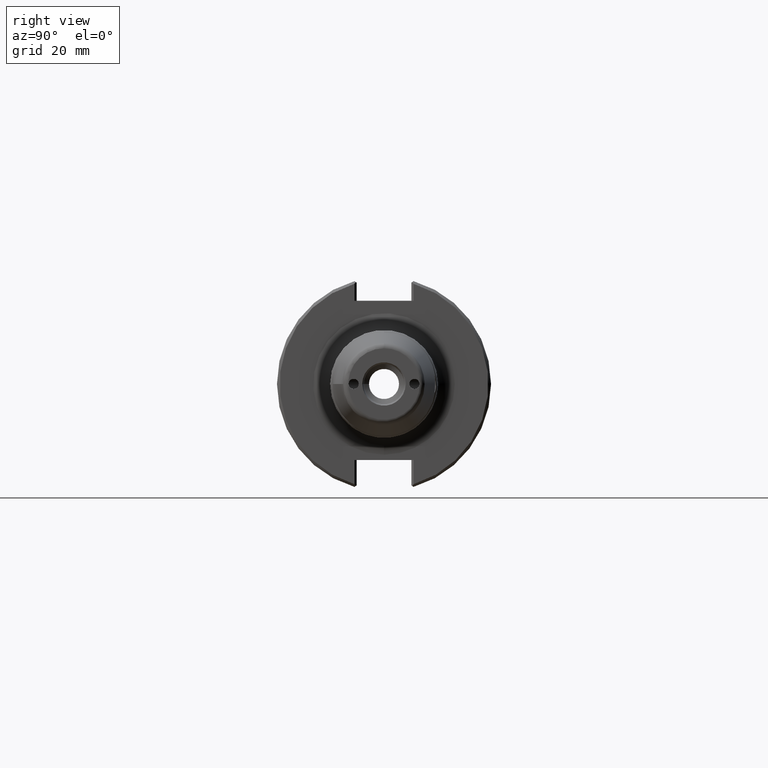
[diagram: clean part render]
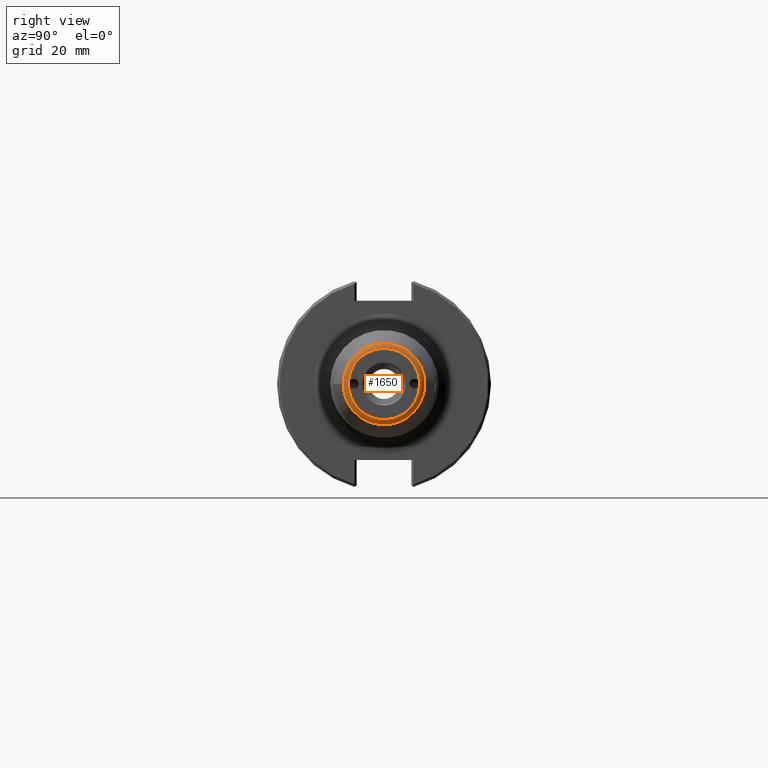
[diagram: same view with one face highlighted and labeled with its STEP entity id]
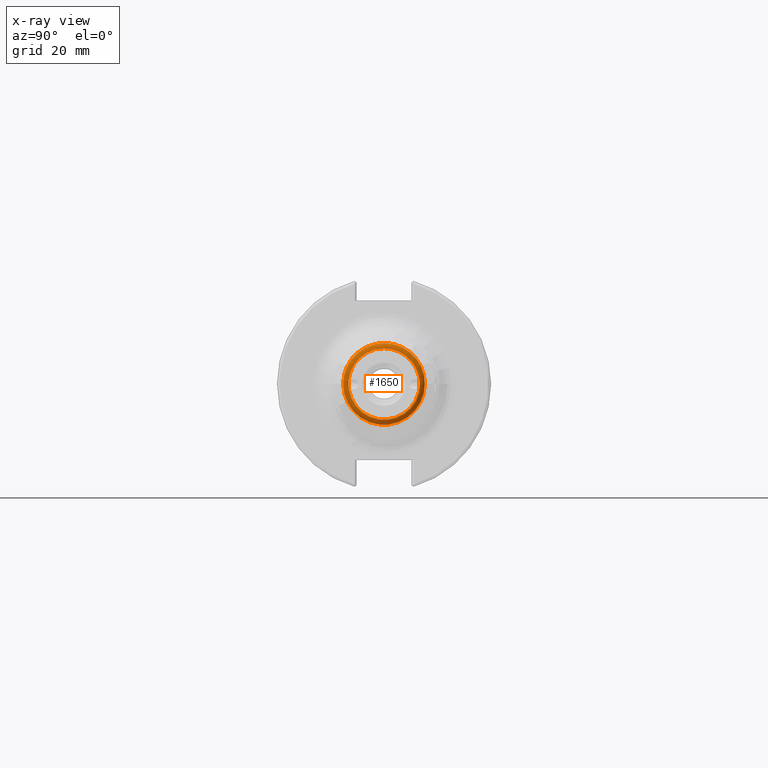
[diagram: x-ray of the same camera — body ghosted, the highlighted face saturated]
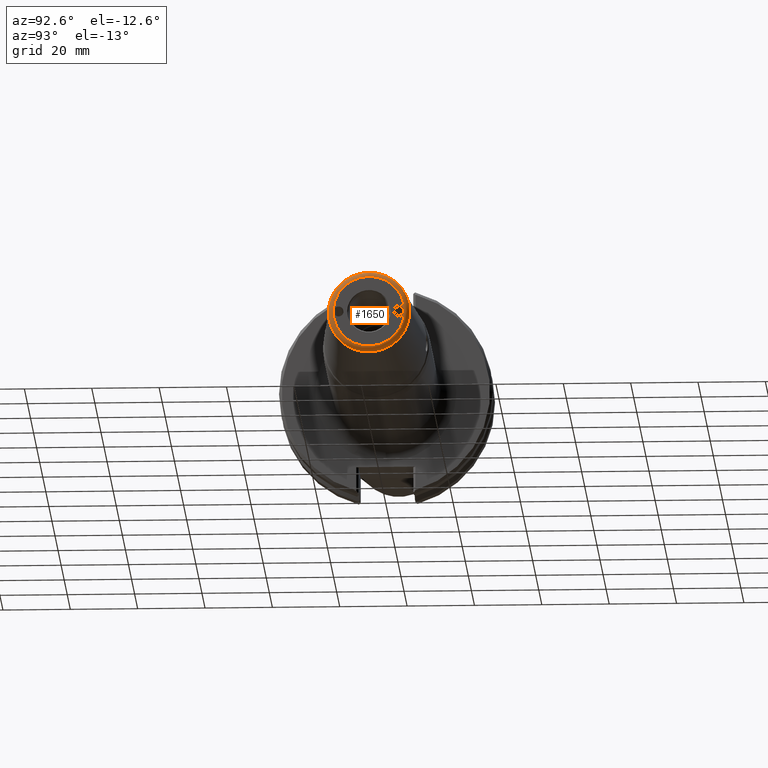
[diagram: same view with one face highlighted and labeled with its STEP entity id]
A machine part, right view. The second image highlights one B-rep face of the part: STEP entity #1650.
The next image is the same camera in x-ray: the body ghosted, the highlighted face saturated — about 0% of this face is hidden behind the body in this view.
A second angle (auxiliary view) of the same face is appended — the face is thin or edge-on in the first view.
In plain terms, the highlighted toroidal blend (fillet) surface has major radius 10.5912 mm and minor (blend) radius 1.524 mm.
Its self-contained STEP definition (entity closure, byte-faithful):
#371=FACE_OUTER_BOUND('',#456,.T.);
#456=EDGE_LOOP('',(#1167,#1168,#1169,#1170,#1171,#1172,#1173));
#563=CIRCLE('',#1785,10.5912288907129);
#564=CIRCLE('',#1786,1.524);
#565=CIRCLE('',#1787,12.1105309073222);
#566=CIRCLE('',#1788,12.1105309073222);
#567=CIRCLE('',#1789,12.1105309073222);
#568=CIRCLE('',#1790,10.5912288907129);
#684=VERTEX_POINT('',#2732);
#685=VERTEX_POINT('',#2733);
#686=VERTEX_POINT('',#2735);
#687=VERTEX_POINT('',#2737);
#688=VERTEX_POINT('',#2739);
#873=EDGE_CURVE('',#684,#685,#563,.T.);
#874=EDGE_CURVE('',#685,#686,#564,.T.);
#875=EDGE_CURVE('',#686,#687,#565,.T.);
#876=EDGE_CURVE('',#687,#688,#566,.T.);
#877=EDGE_CURVE('',#688,#686,#567,.T.);
#878=EDGE_CURVE('',#685,#684,#568,.T.);
#1167=ORIENTED_EDGE('',*,*,#873,.T.);
#1168=ORIENTED_EDGE('',*,*,#874,.T.);
#1169=ORIENTED_EDGE('',*,*,#875,.T.);
#1170=ORIENTED_EDGE('',*,*,#876,.T.);
#1171=ORIENTED_EDGE('',*,*,#877,.T.);
#1172=ORIENTED_EDGE('',*,*,#874,.F.);
#1173=ORIENTED_EDGE('',*,*,#878,.T.);
#1565=TOROIDAL_SURFACE('',#1784,10.5912288907129,1.524);
#1650=ADVANCED_FACE('',(#371),#1565,.T.);
#1784=AXIS2_PLACEMENT_3D('',#2731,#2037,#2038);
#1785=AXIS2_PLACEMENT_3D('',#2734,#2039,#2040);
#1786=AXIS2_PLACEMENT_3D('',#2736,#2041,#2042);
#1787=AXIS2_PLACEMENT_3D('',#2738,#2043,#2044);
#1788=AXIS2_PLACEMENT_3D('',#2740,#2045,#2046);
#1789=AXIS2_PLACEMENT_3D('',#2741,#2047,#2048);
#1790=AXIS2_PLACEMENT_3D('',#2742,#2049,#2050);
#2037=DIRECTION('center_axis',(1.,0.,0.));
#2038=DIRECTION('ref_axis',(0.,0.,-1.));
#2039=DIRECTION('center_axis',(-1.,0.,0.));
#2040=DIRECTION('ref_axis',(0.,-1.,1.22464679914735E-16));
#2041=DIRECTION('center_axis',(0.,-1.,-1.22464679914735E-16));
#2042=DIRECTION('ref_axis',(0.,-1.22464679914735E-16,1.));
#2043=DIRECTION('center_axis',(1.,0.,0.));
#2044=DIRECTION('ref_axis',(0.,-1.,0.));
#2045=DIRECTION('center_axis',(1.,0.,0.));
#2046=DIRECTION('ref_axis',(0.,-1.,0.));
#2047=DIRECTION('center_axis',(1.,0.,0.));
#2048=DIRECTION('ref_axis',(0.,-1.,0.));
#2049=DIRECTION('center_axis',(-1.,0.,0.));
#2050=DIRECTION('ref_axis',(0.,-1.,1.22464679914735E-16));
#2731=CARTESIAN_POINT('Origin',(128.476,0.,0.));
#2732=CARTESIAN_POINT('',(130.,10.5912288907129,-2.5941029120097E-15));
#2733=CARTESIAN_POINT('',(130.,-1.29705145600485E-15,10.5912288907129));
#2734=CARTESIAN_POINT('Origin',(130.,0.,0.));
#2735=CARTESIAN_POINT('',(128.595571661889,-1.48311229116272E-15,12.1105309073222));
#2736=CARTESIAN_POINT('Origin',(128.476,-1.29705145600485E-15,10.5912288907129));
#2737=CARTESIAN_POINT('',(128.595571661889,-12.1105309073222,-1.48311229116272E-15));
#2738=CARTESIAN_POINT('Origin',(128.595571661889,0.,-1.48311229116272E-15));
#2739=CARTESIAN_POINT('',(128.595571661889,12.1105309073222,0.));
#2740=CARTESIAN_POINT('Origin',(128.595571661889,0.,-1.48311229116272E-15));
#2741=CARTESIAN_POINT('Origin',(128.595571661889,0.,-1.48311229116272E-15));
#2742=CARTESIAN_POINT('Origin',(130.,0.,0.));